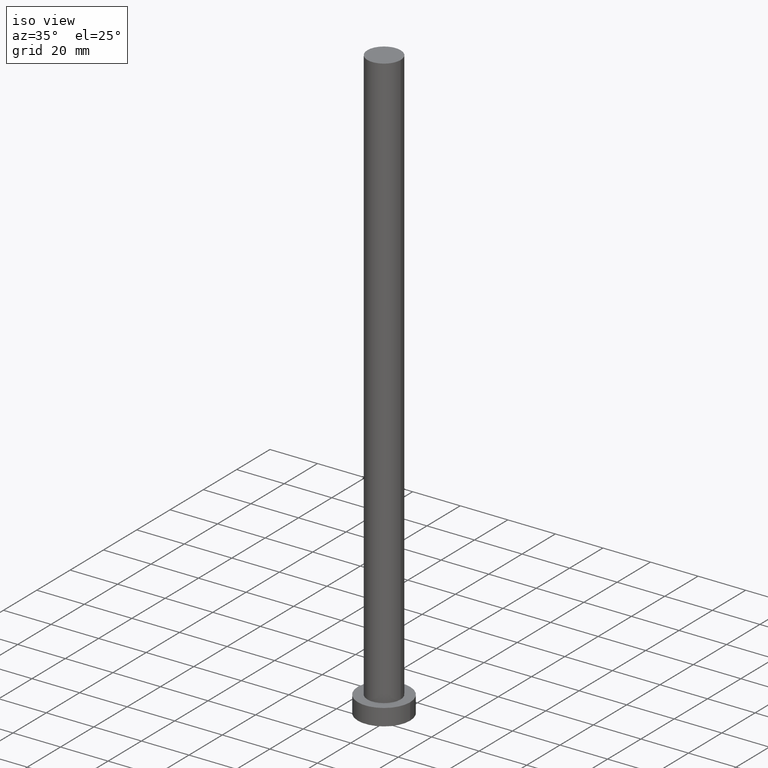
[diagram: clean part render]
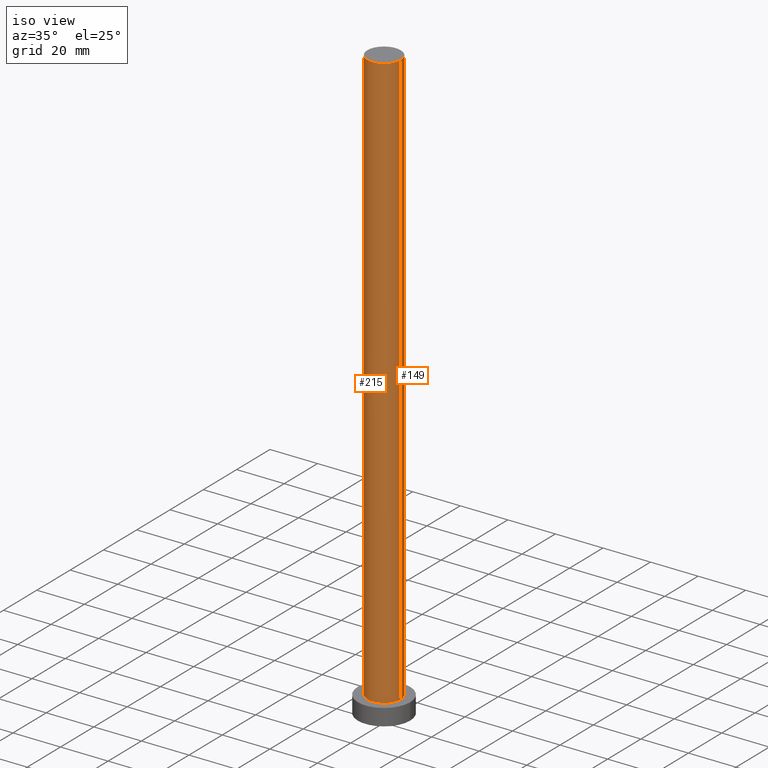
[diagram: same view with one multi-face feature highlighted, each face labeled with its STEP entity id]
A machine part, iso view. The highlighted faces form ONE feature: a constant-radius fillet chain: 2 tangent blend faces with common blend radius 7 mm. The faces share edges in the B-rep.
Their STEP definitions:
[1] entity #149 (Cylinder):
#3 = CIRCLE ( 'NONE', #72, 7.000000000000000000 ) ;
#8 = CARTESIAN_POINT ( 'NONE',  ( -7.000000000000000000, 0.000000000000000000, 7.000000000000000000 ) ) ;
#23 = DIRECTION ( 'NONE',  ( -0.000000000000000000, -0.000000000000000000, -1.000000000000000000 ) ) ;
#27 = EDGE_CURVE ( 'NONE', #142, #210, #53, .T. ) ;
#37 = LINE ( 'NONE', #172, #193 ) ;
#41 = EDGE_CURVE ( 'NONE', #42, #210, #229, .T. ) ;
#42 = VERTEX_POINT ( 'NONE', #163 ) ;
#43 = VERTEX_POINT ( 'NONE', #62 ) ;
#46 = ORIENTED_EDGE ( 'NONE', *, *, #27, .T. ) ;
#47 = DIRECTION ( 'NONE',  ( -0.000000000000000000, -0.000000000000000000, -1.000000000000000000 ) ) ;
#53 = CIRCLE ( 'NONE', #234, 7.000000000000000000 ) ;
#62 = CARTESIAN_POINT ( 'NONE',  ( 7.000000000000000000, 8.572527594031473190E-16, 250.0000000000000000 ) ) ;
#63 = CARTESIAN_POINT ( 'NONE',  ( 0.000000000000000000, 0.000000000000000000, 7.000000000000000000 ) ) ;
#71 = AXIS2_PLACEMENT_3D ( 'NONE', #94, #240, #175 ) ;
#72 = AXIS2_PLACEMENT_3D ( 'NONE', #85, #189, #119 ) ;
#80 = CARTESIAN_POINT ( 'NONE',  ( -7.000000000000000000, 0.000000000000000000, 250.0000000000000000 ) ) ;
#85 = CARTESIAN_POINT ( 'NONE',  ( 0.000000000000000000, 0.000000000000000000, 250.0000000000000000 ) ) ;
#94 = CARTESIAN_POINT ( 'NONE',  ( 0.000000000000000000, 0.000000000000000000, 250.0000000000000000 ) ) ;
#99 = ORIENTED_EDGE ( 'NONE', *, *, #153, .T. ) ;
#103 = ORIENTED_EDGE ( 'NONE', *, *, #41, .F. ) ;
#119 = DIRECTION ( 'NONE',  ( 1.000000000000000000, 0.000000000000000000, 0.000000000000000000 ) ) ;
#142 = VERTEX_POINT ( 'NONE', #156 ) ;
#145 = DIRECTION ( 'NONE',  ( 1.000000000000000000, 0.000000000000000000, 0.000000000000000000 ) ) ;
#149 = ADVANCED_FACE ( 'NONE', ( #152 ), #239, .T. ) ;
#152 = FACE_OUTER_BOUND ( 'NONE', #206, .T. ) ;
#153 = EDGE_CURVE ( 'NONE', #43, #142, #37, .T. ) ;
#156 = CARTESIAN_POINT ( 'NONE',  ( 7.000000000000000000, 8.572527594031473190E-16, 7.000000000000000000 ) ) ;
#161 = ORIENTED_EDGE ( 'NONE', *, *, #187, .F. ) ;
#163 = CARTESIAN_POINT ( 'NONE',  ( -7.000000000000000000, 0.000000000000000000, 250.0000000000000000 ) ) ;
#172 = CARTESIAN_POINT ( 'NONE',  ( 7.000000000000000000, 8.572527594031473190E-16, 250.0000000000000000 ) ) ;
#175 = DIRECTION ( 'NONE',  ( -1.000000000000000000, 0.000000000000000000, 0.000000000000000000 ) ) ;
#184 = DIRECTION ( 'NONE',  ( 0.000000000000000000, 0.000000000000000000, 1.000000000000000000 ) ) ;
#187 = EDGE_CURVE ( 'NONE', #43, #42, #3, .T. ) ;
#189 = DIRECTION ( 'NONE',  ( 0.000000000000000000, 0.000000000000000000, 1.000000000000000000 ) ) ;
#193 = VECTOR ( 'NONE', #23, 1000.000000000000000 ) ;
#206 = EDGE_LOOP ( 'NONE', ( #161, #99, #46, #103 ) ) ;
#210 = VERTEX_POINT ( 'NONE', #8 ) ;
#216 = VECTOR ( 'NONE', #47, 1000.000000000000000 ) ;
#229 = LINE ( 'NONE', #80, #216 ) ;
#234 = AXIS2_PLACEMENT_3D ( 'NONE', #63, #184, #145 ) ;
#239 = CYLINDRICAL_SURFACE ( 'NONE', #71, 7.000000000000000000 ) ;
#240 = DIRECTION ( 'NONE',  ( -0.000000000000000000, -0.000000000000000000, -1.000000000000000000 ) ) ;
[2] entity #215 (Cylinder):
#1 = DIRECTION ( 'NONE',  ( 1.000000000000000000, 0.000000000000000000, 0.000000000000000000 ) ) ;
#8 = CARTESIAN_POINT ( 'NONE',  ( -7.000000000000000000, 0.000000000000000000, 7.000000000000000000 ) ) ;
#9 = CARTESIAN_POINT ( 'NONE',  ( 0.000000000000000000, 0.000000000000000000, 7.000000000000000000 ) ) ;
#18 = AXIS2_PLACEMENT_3D ( 'NONE', #167, #87, #1 ) ;
#23 = DIRECTION ( 'NONE',  ( -0.000000000000000000, -0.000000000000000000, -1.000000000000000000 ) ) ;
#31 = AXIS2_PLACEMENT_3D ( 'NONE', #9, #160, #143 ) ;
#37 = LINE ( 'NONE', #172, #193 ) ;
#41 = EDGE_CURVE ( 'NONE', #42, #210, #229, .T. ) ;
#42 = VERTEX_POINT ( 'NONE', #163 ) ;
#43 = VERTEX_POINT ( 'NONE', #62 ) ;
#47 = DIRECTION ( 'NONE',  ( -0.000000000000000000, -0.000000000000000000, -1.000000000000000000 ) ) ;
#50 = CARTESIAN_POINT ( 'NONE',  ( 0.000000000000000000, 0.000000000000000000, 250.0000000000000000 ) ) ;
#62 = CARTESIAN_POINT ( 'NONE',  ( 7.000000000000000000, 8.572527594031473190E-16, 250.0000000000000000 ) ) ;
#74 = EDGE_CURVE ( 'NONE', #210, #142, #96, .T. ) ;
#78 = ORIENTED_EDGE ( 'NONE', *, *, #41, .T. ) ;
#79 = ORIENTED_EDGE ( 'NONE', *, *, #153, .F. ) ;
#80 = CARTESIAN_POINT ( 'NONE',  ( -7.000000000000000000, 0.000000000000000000, 250.0000000000000000 ) ) ;
#86 = DIRECTION ( 'NONE',  ( -0.000000000000000000, -0.000000000000000000, -1.000000000000000000 ) ) ;
#87 = DIRECTION ( 'NONE',  ( 0.000000000000000000, 0.000000000000000000, 1.000000000000000000 ) ) ;
#96 = CIRCLE ( 'NONE', #31, 7.000000000000000000 ) ;
#114 = CIRCLE ( 'NONE', #18, 7.000000000000000000 ) ;
#115 = AXIS2_PLACEMENT_3D ( 'NONE', #50, #86, #165 ) ;
#116 = EDGE_CURVE ( 'NONE', #42, #43, #114, .T. ) ;
#139 = EDGE_LOOP ( 'NONE', ( #79, #226, #78, #249 ) ) ;
#142 = VERTEX_POINT ( 'NONE', #156 ) ;
#143 = DIRECTION ( 'NONE',  ( 1.000000000000000000, 0.000000000000000000, 0.000000000000000000 ) ) ;
#147 = FACE_OUTER_BOUND ( 'NONE', #139, .T. ) ;
#153 = EDGE_CURVE ( 'NONE', #43, #142, #37, .T. ) ;
#156 = CARTESIAN_POINT ( 'NONE',  ( 7.000000000000000000, 8.572527594031473190E-16, 7.000000000000000000 ) ) ;
#160 = DIRECTION ( 'NONE',  ( 0.000000000000000000, 0.000000000000000000, 1.000000000000000000 ) ) ;
#163 = CARTESIAN_POINT ( 'NONE',  ( -7.000000000000000000, 0.000000000000000000, 250.0000000000000000 ) ) ;
#165 = DIRECTION ( 'NONE',  ( -1.000000000000000000, 0.000000000000000000, 0.000000000000000000 ) ) ;
#167 = CARTESIAN_POINT ( 'NONE',  ( 0.000000000000000000, 0.000000000000000000, 250.0000000000000000 ) ) ;
#172 = CARTESIAN_POINT ( 'NONE',  ( 7.000000000000000000, 8.572527594031473190E-16, 250.0000000000000000 ) ) ;
#193 = VECTOR ( 'NONE', #23, 1000.000000000000000 ) ;
#210 = VERTEX_POINT ( 'NONE', #8 ) ;
#212 = CYLINDRICAL_SURFACE ( 'NONE', #115, 7.000000000000000000 ) ;
#215 = ADVANCED_FACE ( 'NONE', ( #147 ), #212, .T. ) ;
#216 = VECTOR ( 'NONE', #47, 1000.000000000000000 ) ;
#226 = ORIENTED_EDGE ( 'NONE', *, *, #116, .F. ) ;
#229 = LINE ( 'NONE', #80, #216 ) ;
#249 = ORIENTED_EDGE ( 'NONE', *, *, #74, .T. ) ;